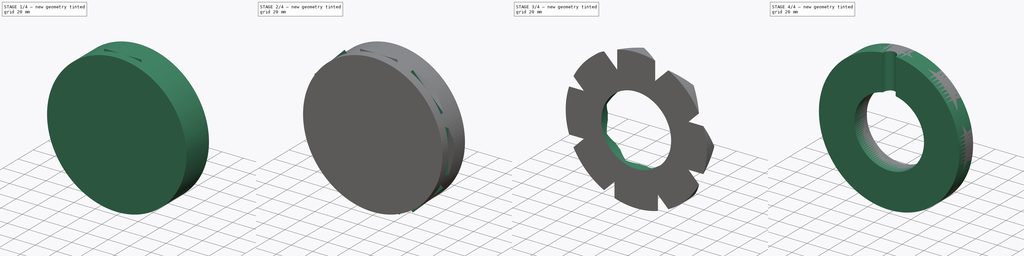
[diagram: build sequence overview — one tinted view per stage of 4, left to right]
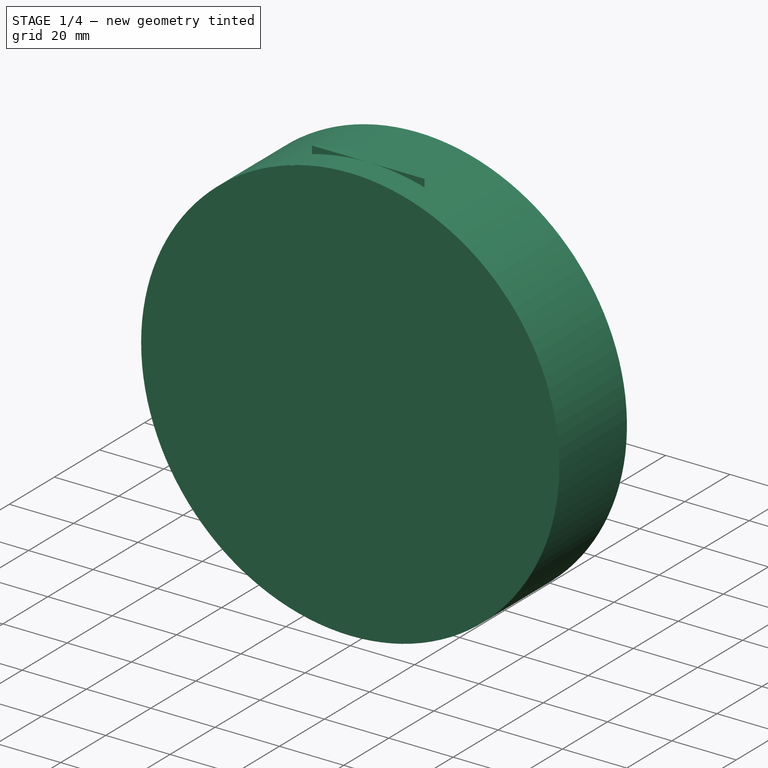
[diagram: stage 1 of 4 — iso view after this stage's code; geometry added in this stage tinted green]
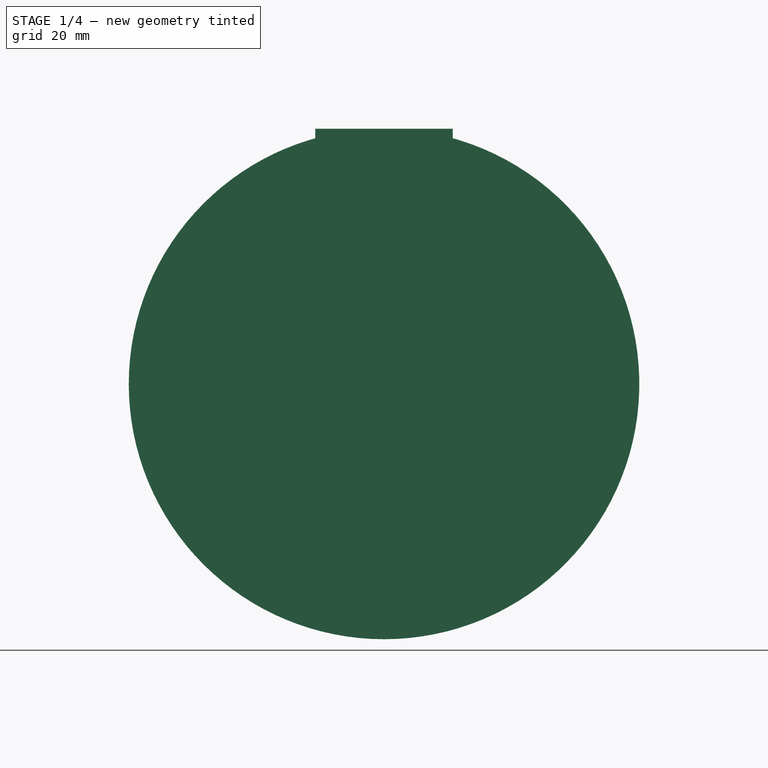
[diagram: stage 1 of 4 — front view after this stage's code; geometry added in this stage tinted green]
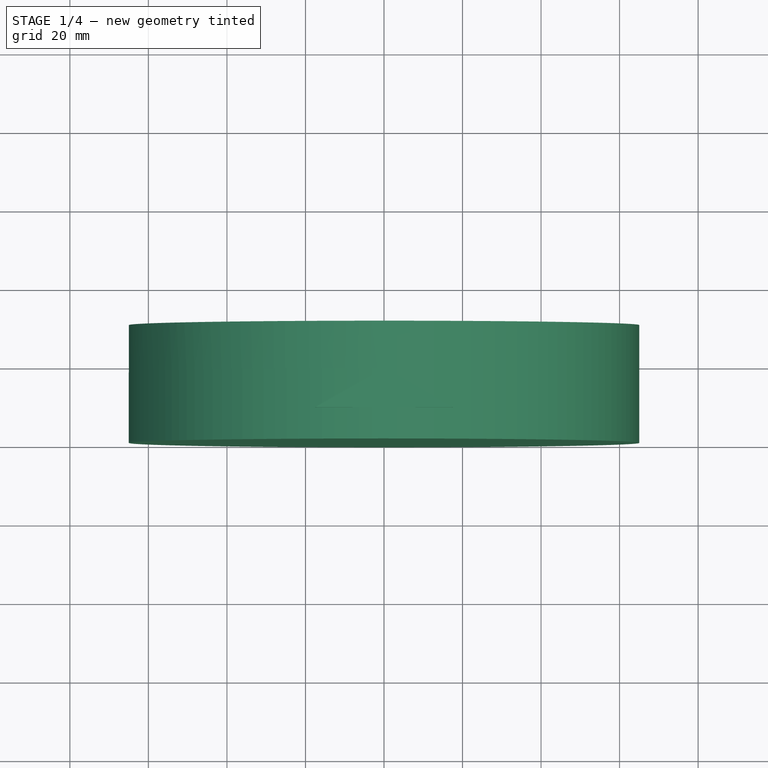
[diagram: stage 1 of 4 — top view after this stage's code; geometry added in this stage tinted green]
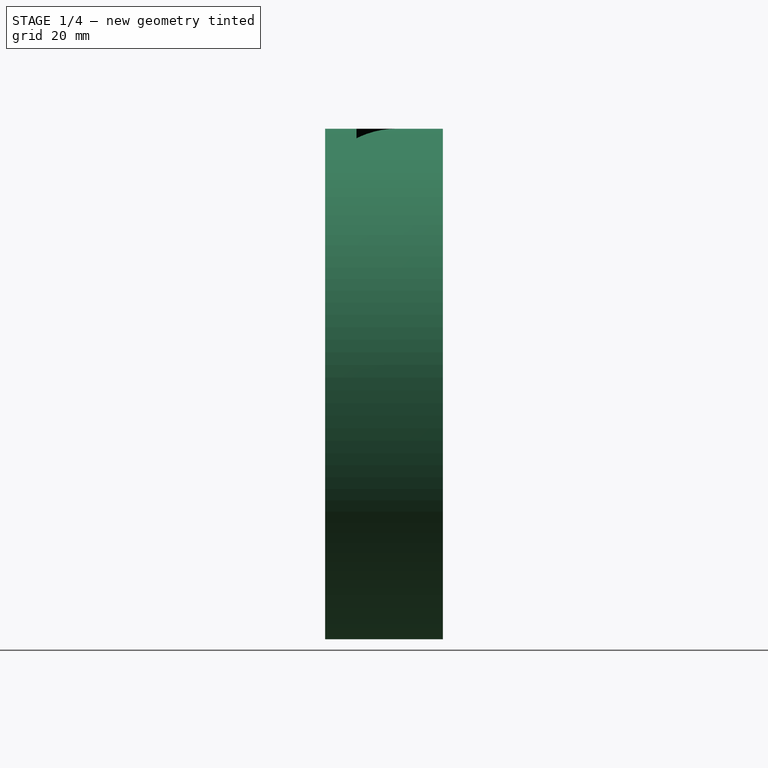
[diagram: stage 1 of 4 — right view after this stage's code; geometry added in this stage tinted green]
FCSTD DOCUMENT  (FreeCAD 0.17R13541 (Git))
Label: Landing_pad_rallen_v5
License: All rights reserved
LicenseURL: http://en.wikipedia.org/wiki/All_rights_reserved
objects: Sketcher::SketchObject×6, PartDesign::Pad×3, PartDesign::Revolution×2, Part::Cut×2, Part::Cylinder×1, PartDesign::PolarPattern×1, Part::MultiFuse×1, PartDesign::Fillet×1, Part::MultiCommon×1
note: 23 computed .brp shape members not serialized (recipe doc carries the construction recipe); baked Part::Feature solids carry a one-line shape summary decoded from their .brp

FEATURE [Sketcher::SketchObject] Sketch
  sketch-geometry (7):
    g0: LineSegment StartX=-50 StartY=10 StartZ=0 EndX=-65 EndY=18 EndZ=0
    g1: LineSegment StartX=-35.3 StartY=18 StartZ=0 EndX=-35.3 EndY=16.4 EndZ=0
    g2: LineSegment StartX=-35.3 StartY=16.4 StartZ=0 EndX=-32.2 EndY=16.4 EndZ=0
    g3: LineSegment StartX=-32.2 StartY=16.4 StartZ=0 EndX=-32.2 EndY=0 EndZ=0
    g4: LineSegment StartX=-32.2 StartY=0 StartZ=0 EndX=-65 EndY=0 EndZ=0
    g5: LineSegment StartX=-65 StartY=18 StartZ=0 EndX=-65 EndY=0 EndZ=0
    g6: LineSegment StartX=-35.3 StartY=18 StartZ=0 EndX=-50 EndY=10 EndZ=0
  constraints (20):
    c: DistanceX(g0) = -50
    c: DistanceX(g0) = -65
    c: DistanceX(g1) = -35.3
    c: Vertical(g1)
    c: Coincident(g2,g1)
    c: Horizontal(g2)
    c: Coincident(g3,g2)
    c: Vertical(g3)
    c: Coincident(g4,g3)
    c: Coincident(g5,g0)
    c: Vertical(g5)
    c: DistanceY(g0) = 18
    c: DistanceY(g5) = 0
    c: PointOnObject(g5,g4)
    c: Horizontal(g4)
    c: DistanceY(g1,g1) = 1.6
    c: DistanceX(g2) = -32.2
    c: Coincident(g6,g1)
    c: Coincident(g6,g0)
    c: DistanceY(g0,g0) = 8
FEATURE [PartDesign::Revolution] Revolution
  Angle = 360
  Axis = (0,1,0)
  Base = (0,0,0)
  Profile = -> Sketch
  ReferenceAxis = -> Sketch [V_Axis]
FEATURE [Sketcher::SketchObject] Sketch006
  MapMode = 2
  Support = -> [Sketch]
  sketch-geometry (3):
    g0: LineSegment StartX=0 StartY=18 StartZ=0 EndX=-17.5 EndY=8 EndZ=0
    g1: LineSegment StartX=-17.5 StartY=8 StartZ=0 EndX=17.5 EndY=8 EndZ=0
    g2: LineSegment StartX=17.5 StartY=8 StartZ=0 EndX=0 EndY=18 EndZ=0
  constraints (8):
    c: Horizontal(g1)
    c: Coincident(g2,g0)
    c: Coincident(g2,g1)
    c: Coincident(g0,g1)
    c: DistanceY(g0) = 18
    c: DistanceY(g0) = 8
    c: Symmetric(g0,g1,g-2)
    c: DistanceX(g1,g1) = 35
FEATURE [PartDesign::Pad] Pad
  Length = 65
  Length2 = 100
  Profile = -> Sketch006
  Type = 0
FEATURE [PartDesign::Pad] Pad002
  Length = 30
  Length2 = 100
  Profile = -> Sketch005
  Type = 0
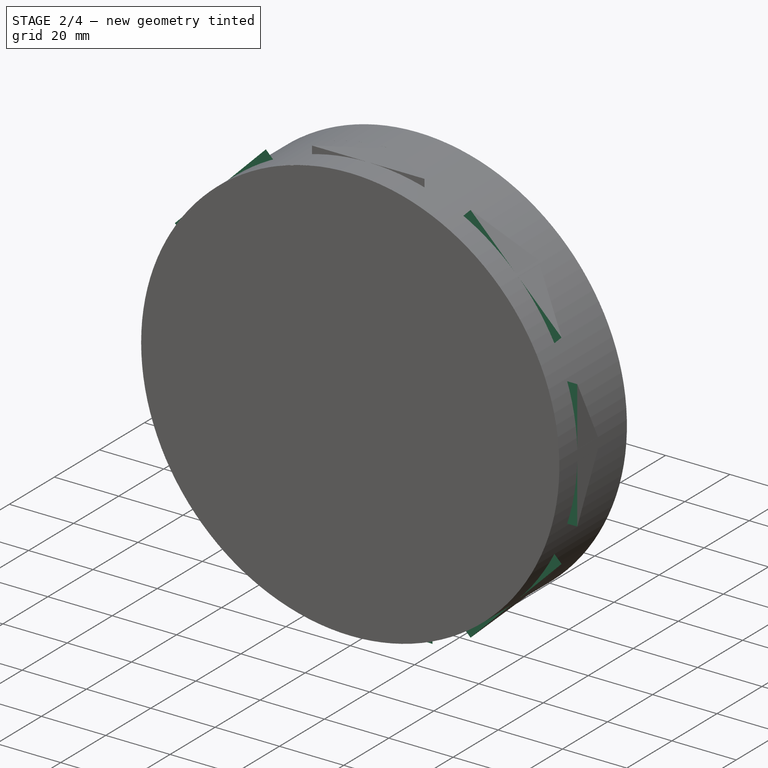
[diagram: stage 2 of 4 — iso view after this stage's code; geometry added in this stage tinted green]
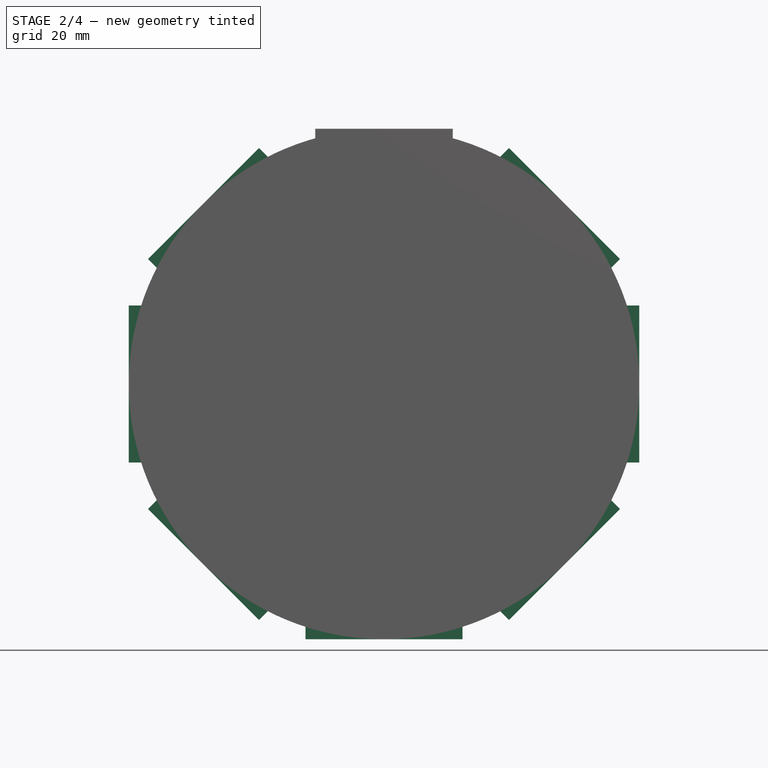
[diagram: stage 2 of 4 — front view after this stage's code; geometry added in this stage tinted green]
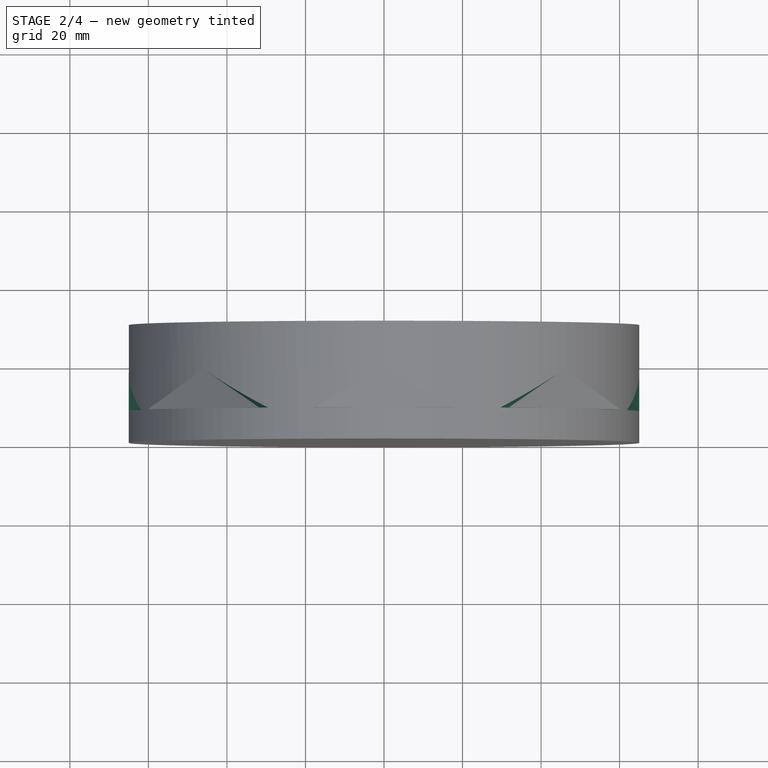
[diagram: stage 2 of 4 — top view after this stage's code; geometry added in this stage tinted green]
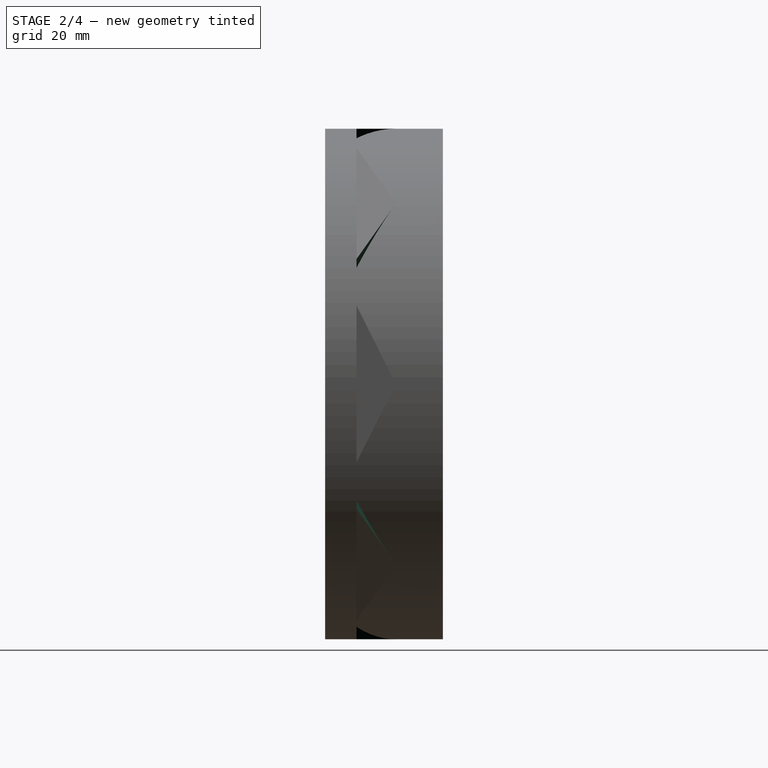
[diagram: stage 2 of 4 — right view after this stage's code; geometry added in this stage tinted green]
FEATURE [Sketcher::SketchObject] Sketch004
  MapMode = 2
  Support = -> [Sketch]
  sketch-geometry (3):
    g0: LineSegment StartX=0 StartY=18 StartZ=0 EndX=-20 EndY=8 EndZ=0
    g1: LineSegment StartX=-20 StartY=8 StartZ=0 EndX=20 EndY=8 EndZ=0
    g2: LineSegment StartX=20 StartY=8 StartZ=0 EndX=0 EndY=18 EndZ=0
  constraints (8):
    c: Horizontal(g1)
    c: Coincident(g2,g0)
    c: Coincident(g2,g1)
    c: Coincident(g0,g1)
    c: DistanceY(g0) = 18
    c: DistanceY(g0) = 8
    c: Symmetric(g0,g1,g-2)
    c: DistanceX(g1,g1) = 40
FEATURE [PartDesign::Pad] Pad001
  Length = 65
  Length2 = 100
  Profile = -> Sketch004
  Reversed = true
  Type = 0
FEATURE [Sketcher::SketchObject] Sketch005
  MapMode = 11
  Placement = pos=(0,0,0) rot=(0.57735,0.57735,0.57735;4.18879rad)
  Support = -> [Revolution]
  sketch-geometry (2):
    g0: Circle CenterX=0 CenterY=0.0226789 CenterZ=0 NormalX=0 NormalY=0 NormalZ=1 AngleXU=0 Radius=65
    g1: Circle CenterX=59.8249 CenterY=-25.5539 CenterZ=0 NormalX=0 NormalY=0 NormalZ=1 AngleXU=0 Radius=0
  constraints (2):
    c: PointOnObject(g0,g-2)
    c: Radius(g0) = 65
FEATURE [PartDesign::PolarPattern] PolarPattern
  Angle = 360
  Axis = -> Sketch004 [V_Axis]
  Occurrences = 8
  Originals = -> [Pad001]
FEATURE [Part::MultiFuse] Fusion
  Shapes = -> [PolarPattern,Pad]
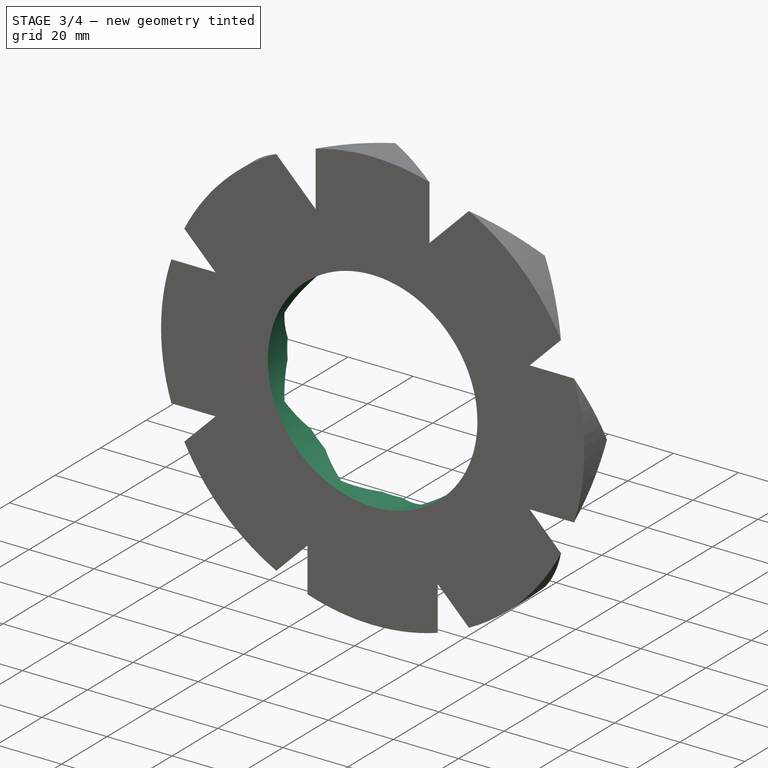
[diagram: stage 3 of 4 — iso view after this stage's code; geometry added in this stage tinted green]
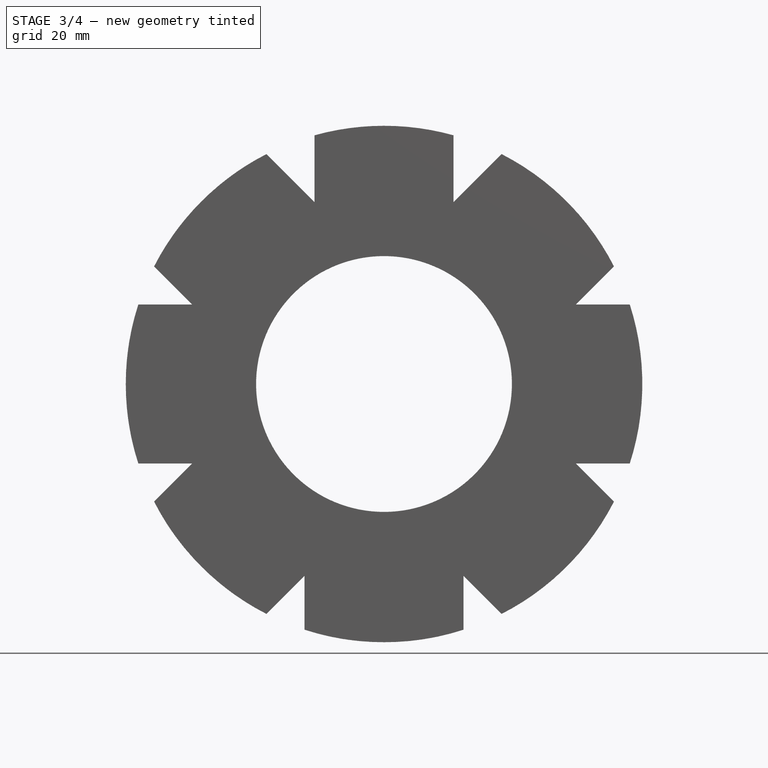
[diagram: stage 3 of 4 — front view after this stage's code; geometry added in this stage tinted green]
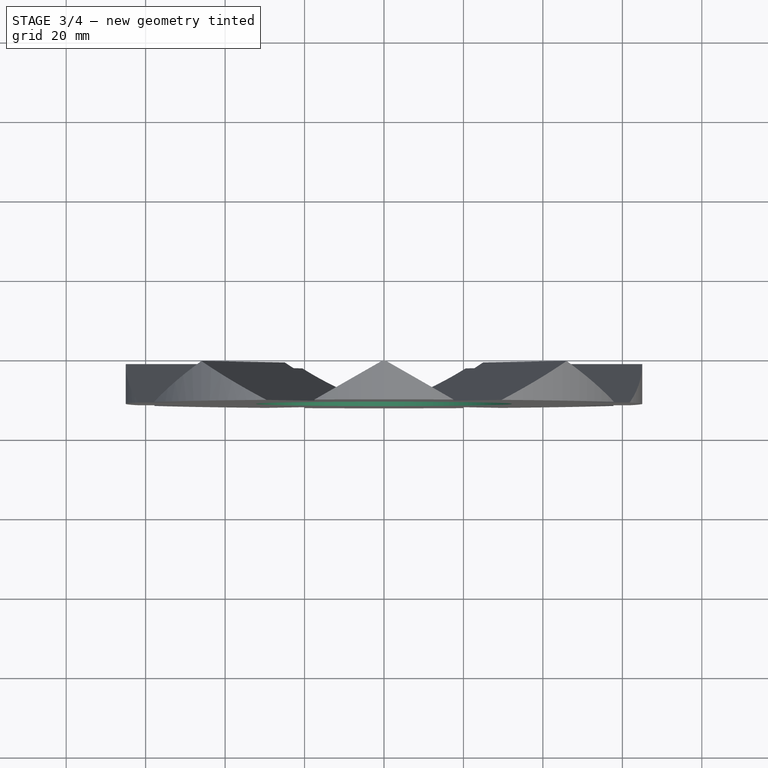
[diagram: stage 3 of 4 — top view after this stage's code; geometry added in this stage tinted green]
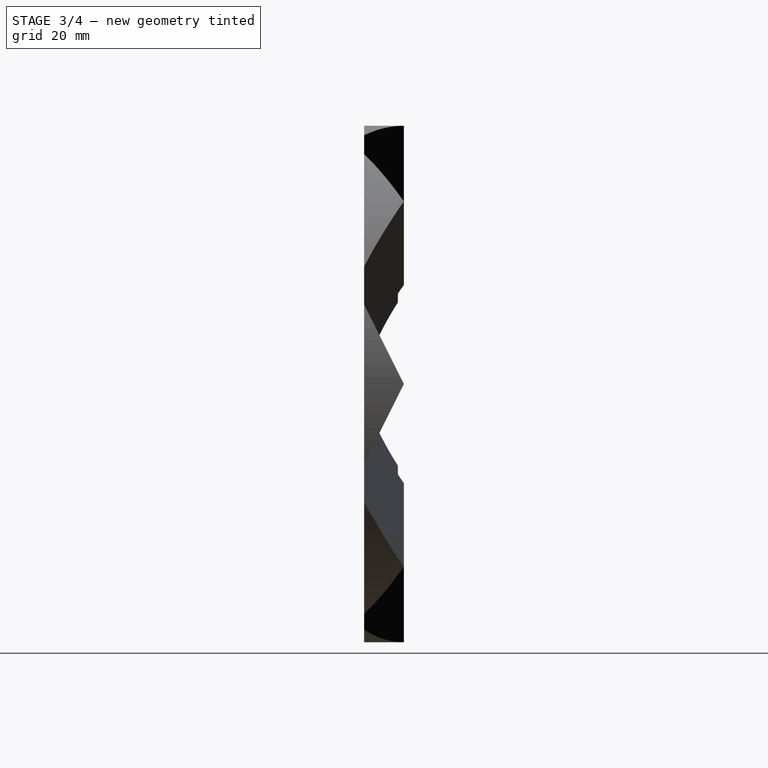
[diagram: stage 3 of 4 — right view after this stage's code; geometry added in this stage tinted green]
FEATURE [Sketcher::SketchObject] Sketch001
  MapMode = 2
  Support = -> [Sketch]
  sketch-geometry (3):
    g0: LineSegment StartX=0 StartY=18 StartZ=0 EndX=-17.5 EndY=8 EndZ=0
    g1: LineSegment StartX=-17.5 StartY=8 StartZ=0 EndX=17.5 EndY=8 EndZ=0
    g2: LineSegment StartX=17.5 StartY=8 StartZ=0 EndX=0 EndY=18 EndZ=0
  constraints (8):
    c: Horizontal(g1)
    c: Coincident(g2,g0)
    c: Coincident(g2,g1)
    c: Coincident(g0,g1)
    c: DistanceY(g0) = 18
    c: DistanceY(g0) = 8
    c: Symmetric(g0,g1,g-2)
    c: DistanceX(g1,g1) = 35
FEATURE [Sketcher::SketchObject] Sketch002
  MapMode = 2
  Support = -> [Sketch]
  sketch-geometry (6):
    g0: LineSegment StartX=-35.3 StartY=18.0998 StartZ=0 EndX=-35.3 EndY=16.4998 EndZ=0
    g1: LineSegment StartX=-35.3 StartY=16.4998 StartZ=0 EndX=-32.2 EndY=16.4998 EndZ=0
    g2: LineSegment StartX=-32.2 StartY=16.4998 StartZ=0 EndX=-32.2 EndY=0 EndZ=0
    g3: LineSegment StartX=-32.2 StartY=0 StartZ=0 EndX=0 EndY=0 EndZ=0
    g4: LineSegment StartX=0 StartY=0 StartZ=0 EndX=0 EndY=18.0998 EndZ=0
    g5: LineSegment StartX=0 StartY=18.0998 StartZ=0 EndX=-35.3 EndY=18.0998 EndZ=0
  constraints (17):
    c: Vertical(g0)
    c: Coincident(g1,g0)
    c: Horizontal(g1)
    c: Coincident(g2,g1)
    c: PointOnObject(g2,g-1)
    c: Vertical(g2)
    c: Coincident(g3,g2)
    c: Coincident(g3,g-1)
    c: PointOnObject(g4,g-2)
    c: Vertical(g4)
    c: Horizontal(g5)
    c: Coincident(g5,g0)
    c: DistanceX(g0) = -35.3
    c: DistanceY(g0,g0) = 1.6
    c: DistanceX(g3,g3) = 32.2
    c: Coincident(g4,g-1)
    c: Coincident(g4,g5)
FEATURE [PartDesign::Revolution] Revolution001  label="QiCharger"
  Angle = 360
  Axis = (0,1,0)
  Base = (0,0,0)
  Profile = -> Sketch002
  ReferenceAxis = -> Sketch002 [V_Axis]
FEATURE [Part::Cut] Cut
  Base = -> Fusion
  Tool = -> Revolution001
FEATURE [Part::MultiCommon] Common
  Shapes = -> [Cut,Pad002]
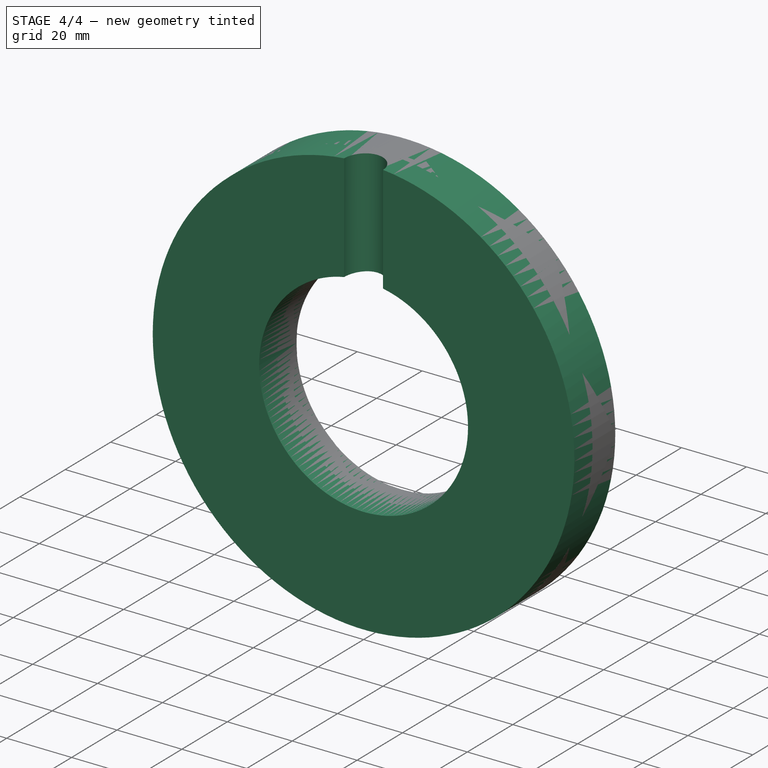
[diagram: stage 4 of 4 — iso view after this stage's code; geometry added in this stage tinted green]
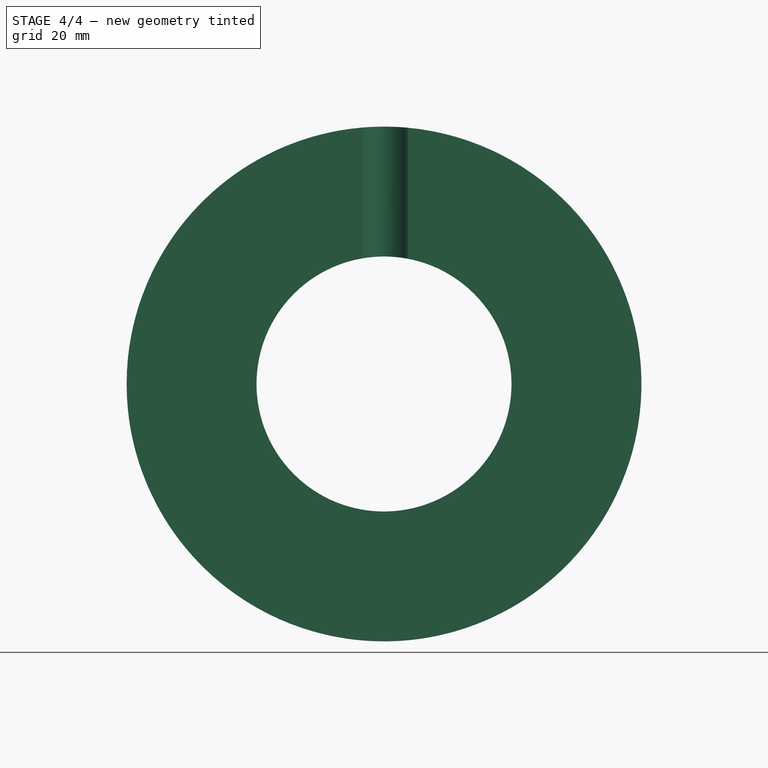
[diagram: stage 4 of 4 — front view after this stage's code; geometry added in this stage tinted green]
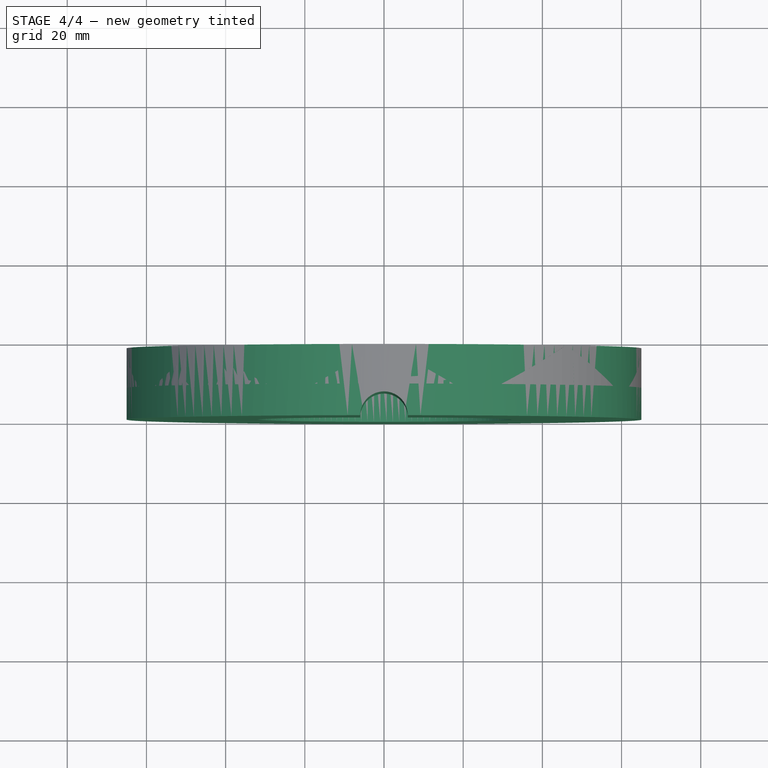
[diagram: stage 4 of 4 — top view after this stage's code; geometry added in this stage tinted green]
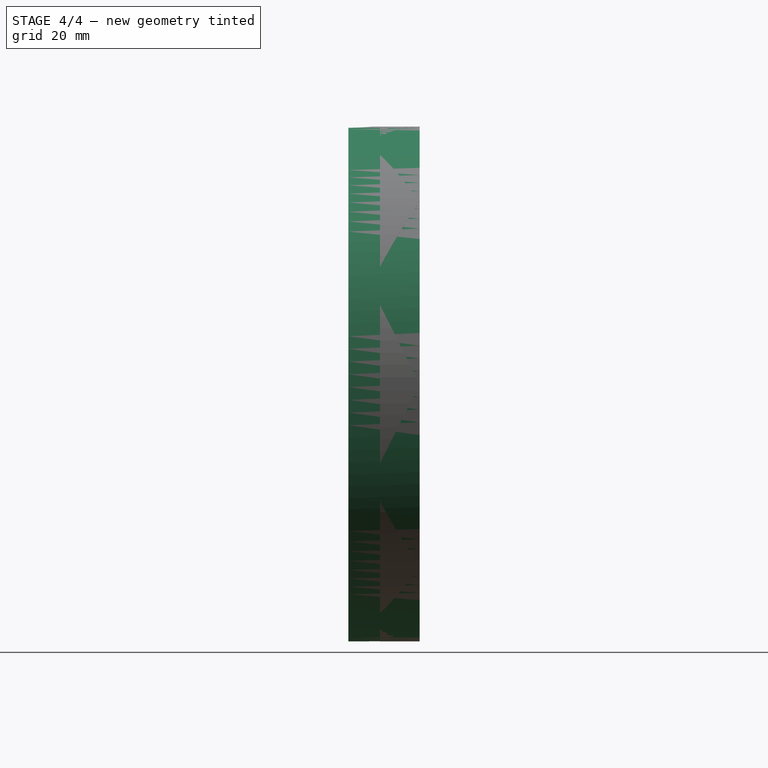
[diagram: stage 4 of 4 — right view after this stage's code; geometry added in this stage tinted green]
FEATURE [Part::Cylinder] Cylinder
  Angle = 360
  AttacherType = Attacher::AttachEngine3D
  Height = 80
  Radius = 6
FEATURE [PartDesign::Fillet] Fillet
  Base = -> Revolution [Edge2]
  Radius = 2
FEATURE [Part::Cut] Cut001
  Base = -> Fillet
  Tool = -> Cylinder
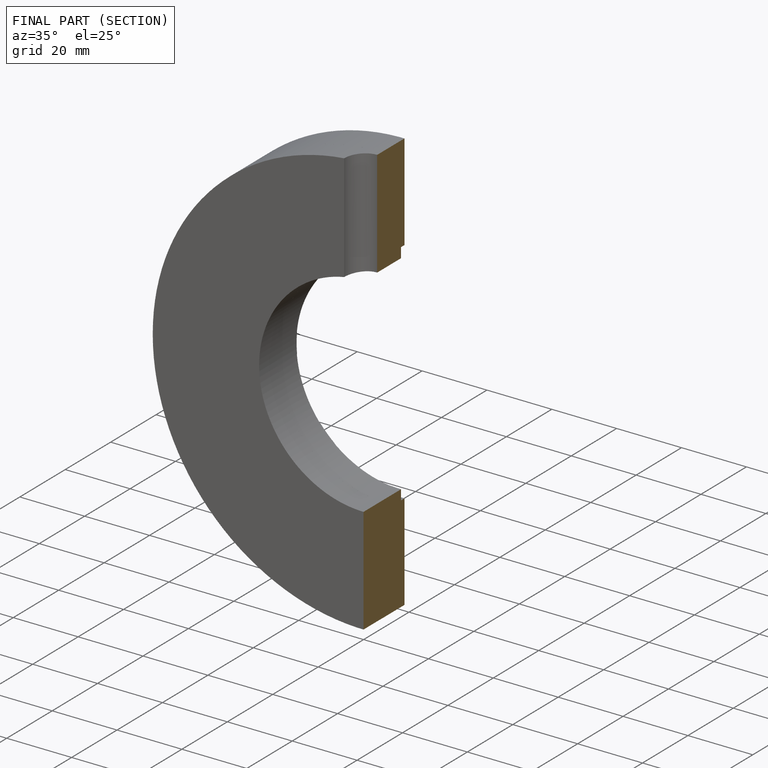
[diagram: finished part — half-section view (interior)]
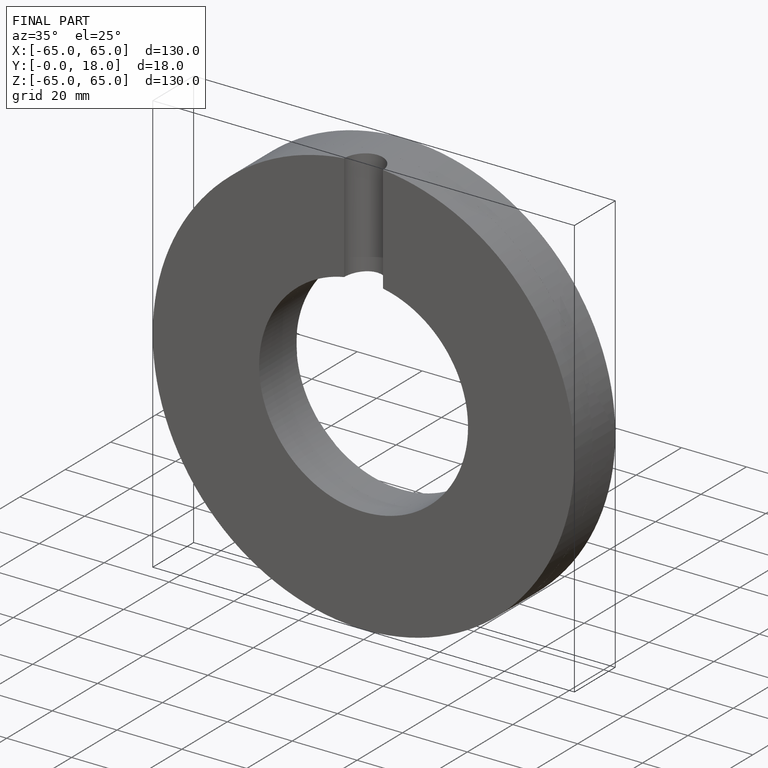
[diagram: finished part — iso view with bounding-box wireframe]
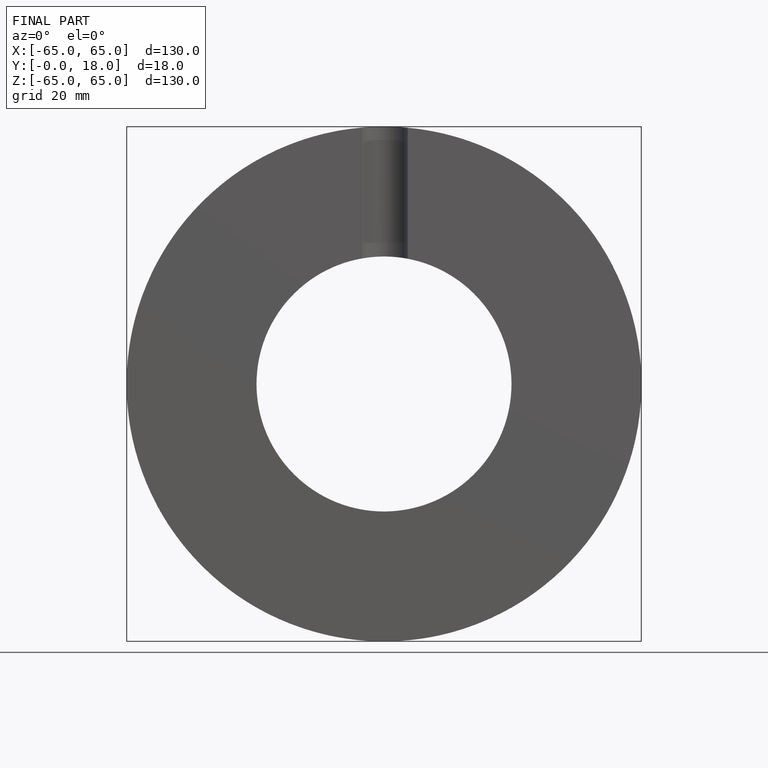
[diagram: finished part — front view with bounding-box wireframe]
